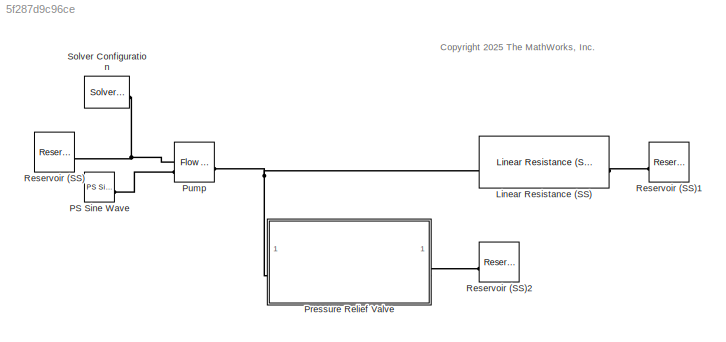
MODEL slx_5f287d9c96ce
KIND model
CONFIG AbsTol = auto
CONFIG EnableMultiTasking = off
CONFIG FixedStep = auto
CONFIG MaxStep = auto
CONFIG MinStep = auto
CONFIG RelTol = 1e-3
CONFIG SampleTimeConstraint = Unconstrained
CONFIG SolverName = VariableStepAuto
CONFIG StartTime = 0.0
CONFIG StopTime = 6
BLOCK [Reference] Linear Resistance (SS)  REF=customization_lib/solution/elements/Linear Resistance
(SS)
  SourceBlock = customization_lib/solution/elements/Linear Resistance\n(SS)
  SourceProductName = Customization
  SourceType = Linear Resistance\n(SS)
BLOCK [Reference] PS Sine Wave  REF=fl_lib/Physical Signals/Sources/PS Sine Wave
  SourceBlock = fl_lib/Physical Signals/Sources/PS Sine Wave
  SourceType = PS Sine Wave
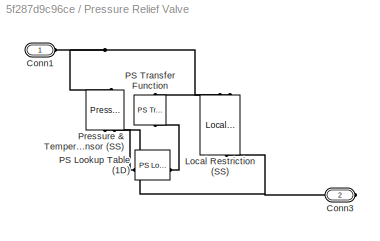
BLOCK [SubSystem] Pressure Relief Valve
BLOCK [PMIOPort] Pressure Relief Valve/Conn1
  Side = Left
BLOCK [PMIOPort] Pressure Relief Valve/Conn3
  Port = 2
  Side = Right
BLOCK [Reference] Pressure Relief Valve/Local Restriction (SS)  REF=customization_lib/solution/elements/Local Restriction
(SS)
  NameLocation = left
  SourceBlock = customization_lib/solution/elements/Local Restriction\n(SS)
  SourceProductName = Customization
  SourceType = Local Restriction\n(SS)
BLOCK [Reference] Pressure Relief Valve/PS Lookup Table (1D)  REF=fl_lib/Physical Signals/Lookup Tables/PS Lookup Table (1D)
  SourceBlock = fl_lib/Physical Signals/Lookup Tables/PS Lookup Table (1D)
  SourceType = PS Lookup Table (1D)
BLOCK [Reference] Pressure Relief Valve/PS Transfer Function  REF=fl_lib/Physical Signals/Linear Operators/PS Transfer Function
  NameLocation = right
  SourceBlock = fl_lib/Physical Signals/Linear Operators/PS Transfer Function
  SourceType = PS Transfer Function
BLOCK [Reference] Pressure Relief Valve/Pressure & Temperature Sensor (SS)  REF=customization_lib/solution/sensors/Pressure &
Temperature Sensor
(SS)
  NameLocation = left
  SourceBlock = customization_lib/solution/sensors/Pressure &\nTemperature Sensor\n(SS)
  SourceProductName = Customization
  SourceType = Pressure &\nTemperature Sensor\n(SS)
BLOCK [Reference] Pump  REF=customization_lib/solution/sources/Flow Rate Source
(SS)
  SourceBlock = customization_lib/solution/sources/Flow Rate Source\n(SS)
  SourceProductName = Customization
  SourceType = Flow Rate Source\n(SS)
BLOCK [Reference] Reservoir (SS)  REF=customization_lib/solution/elements/Reservoir (SS)
  SourceBlock = customization_lib/solution/elements/Reservoir (SS)
  SourceProductName = Customization
  SourceType = Reservoir (SS)
BLOCK [Reference] Reservoir (SS)1  REF=customization_lib/solution/elements/Reservoir (SS)
  SourceBlock = customization_lib/solution/elements/Reservoir (SS)
  SourceProductName = Customization
  SourceType = Reservoir (SS)
BLOCK [Reference] Reservoir (SS)2  REF=customization_lib/solution/elements/Reservoir (SS)
  SourceBlock = customization_lib/solution/elements/Reservoir (SS)
  SourceProductName = Customization
  SourceType = Reservoir (SS)
BLOCK [Reference] Solver Configuration  REF=nesl_utility/Solver
Configuration
  SourceBlock = nesl_utility/Solver\nConfiguration
  SourceType = Solver\nConfiguration
ANNOTATION (root): <copyright redacted>
PNET net1: Linear Resistance (SS):LConn1 -- Pressure Relief Valve:LConn1 -- Pump:RConn1
PLINE Linear Resistance (SS):RConn1 -- Reservoir (SS)1:LConn1
PLINE PS Sine Wave:RConn1 -- Pump:LConn2
PNET net2: Pressure Relief Valve/Conn1:RConn1 -- Pressure Relief Valve/Local Restriction (SS):LConn1 -- Pressure Relief Valve/Pressure & Temperature Sensor (SS):LConn1
PNET net3: Pressure Relief Valve/Conn3:RConn1 -- Pressure Relief Valve/Local Restriction (SS):RConn1 -- Pressure Relief Valve/Pressure & Temperature Sensor (SS):RConn1
PLINE Pressure Relief Valve/Local Restriction (SS):LConn2 -- Pressure Relief Valve/PS Transfer Function:RConn1
PLINE Pressure Relief Valve/PS Lookup Table (1D):LConn1 -- Pressure Relief Valve/Pressure & Temperature Sensor (SS):RConn2
PLINE Pressure Relief Valve/PS Lookup Table (1D):RConn1 -- Pressure Relief Valve/PS Transfer Function:LConn1
PLINE Pressure Relief Valve:RConn1 -- Reservoir (SS)2:LConn1
PNET net4: Pump:LConn1 -- Reservoir (SS):LConn1 -- Solver Configuration:RConn1
note: PNET lines group multi-terminal physical nets as a canonical sorted terminal list (undirected conserving connections); 2-terminal nets keep the pairwise PLINE form
